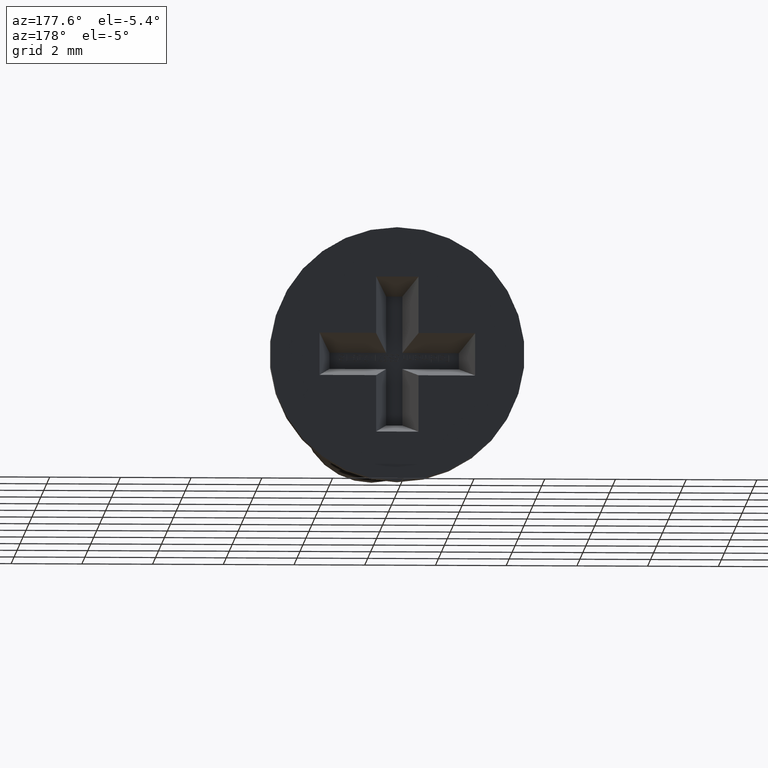
[diagram: clean part render]
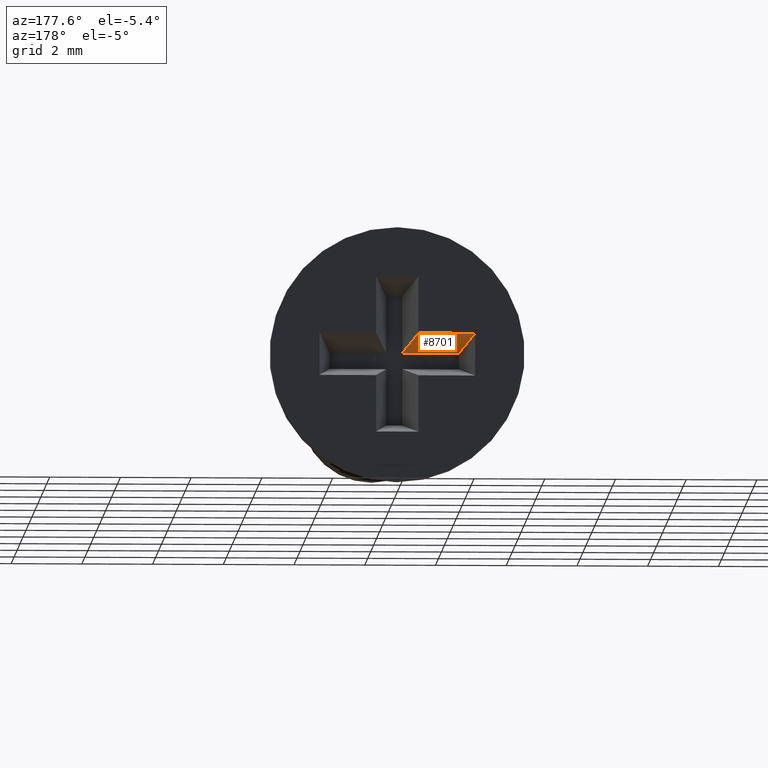
[diagram: same view with one face highlighted and labeled with its STEP entity id]
A machine part, auxiliary view. The second image highlights one B-rep face of the part: STEP entity #8701.
In plain terms, the highlighted planar face has unit normal (0, -0.1736, 0.9848).
Its self-contained STEP definition (entity closure, byte-faithful):
#695 = CARTESIAN_POINT ( 'NONE',  ( -0.2297133405122229500, 15.89999999999999700, 0.2297133405122232200 ) ) ;
#730 = DIRECTION ( 'NONE',  ( 0.0000000000000000000, -0.1736481776669303900, 0.9848077530122081300 ) ) ;
#901 = FACE_OUTER_BOUND ( 'NONE', #1112, .T. ) ;
#1036 = EDGE_CURVE ( 'NONE', #9289, #6752, #13403, .T. ) ;
#1112 = EDGE_LOOP ( 'NONE', ( #9910, #14562, #4274, #8963 ) ) ;
#1293 = VECTOR ( 'NONE', #7469, 1000.000000000000000 ) ;
#1938 = CARTESIAN_POINT ( 'NONE',  ( -2.164874728990915800, 17.80079468911703700, 0.5648747289909162900 ) ) ;
#1973 = LINE ( 'NONE', #4056, #1293 ) ;
#2974 = PLANE ( 'NONE',  #3104 ) ;
#3104 = AXIS2_PLACEMENT_3D ( 'NONE', #6347, #730, #7491 ) ;
#3898 = EDGE_CURVE ( 'NONE', #6752, #11652, #5191, .T. ) ;
#4056 = CARTESIAN_POINT ( 'NONE',  ( -2.199999999999999700, 18.00000000000000000, 0.5999999999999999800 ) ) ;
#4138 = VECTOR ( 'NONE', #8527, 1000.000000000000100 ) ;
#4274 = ORIENTED_EDGE ( 'NONE', *, *, #1036, .F. ) ;
#5191 = LINE ( 'NONE', #8482, #4138 ) ;
#6347 = CARTESIAN_POINT ( 'NONE',  ( -2.199999999999999700, 18.00000000000000000, 0.5999999999999999800 ) ) ;
#6375 = EDGE_CURVE ( 'NONE', #8191, #11652, #1973, .T. ) ;
#6752 = VERTEX_POINT ( 'NONE', #695 ) ;
#7469 = DIRECTION ( 'NONE',  ( 1.000000000000000000, 0.0000000000000000000, 0.0000000000000000000 ) ) ;
#7491 = DIRECTION ( 'NONE',  ( 0.0000000000000000000, -0.9848077530122080200, -0.1736481776669303600 ) ) ;
#7634 = DIRECTION ( 'NONE',  ( 1.000000000000000000, 0.0000000000000000000, 0.0000000000000000000 ) ) ;
#7907 = VECTOR ( 'NONE', #7634, 1000.000000000000000 ) ;
#8191 = VERTEX_POINT ( 'NONE', #13093 ) ;
#8482 = CARTESIAN_POINT ( 'NONE',  ( -0.5999999999999996400, 18.00000000000000000, 0.5999999999999999800 ) ) ;
#8527 = DIRECTION ( 'NONE',  ( -0.1710878697460355100, 0.9702875252478139200, 0.1710878697460355400 ) ) ;
#8701 = ADVANCED_FACE ( 'NONE', ( #901 ), #2974, .F. ) ;
#8963 = ORIENTED_EDGE ( 'NONE', *, *, #11271, .T. ) ;
#9289 = VERTEX_POINT ( 'NONE', #12468 ) ;
#9910 = ORIENTED_EDGE ( 'NONE', *, *, #6375, .T. ) ;
#10054 = CARTESIAN_POINT ( 'NONE',  ( -0.5999999999999996400, 18.00000000000000000, 0.5999999999999999800 ) ) ;
#10958 = CARTESIAN_POINT ( 'NONE',  ( -2.199999999999999700, 15.89999999999999700, 0.2297133405122232800 ) ) ;
#10960 = DIRECTION ( 'NONE',  ( -0.1710878697460355400, 0.9702875252478139200, 0.1710878697460355400 ) ) ;
#11271 = EDGE_CURVE ( 'NONE', #9289, #8191, #13192, .T. ) ;
#11652 = VERTEX_POINT ( 'NONE', #10054 ) ;
#12468 = CARTESIAN_POINT ( 'NONE',  ( -1.829713340512223000, 15.89999999999999700, 0.2297133405122232200 ) ) ;
#13093 = CARTESIAN_POINT ( 'NONE',  ( -2.199999999999999700, 18.00000000000000000, 0.5999999999999999800 ) ) ;
#13192 = LINE ( 'NONE', #1938, #13558 ) ;
#13403 = LINE ( 'NONE', #10958, #7907 ) ;
#13558 = VECTOR ( 'NONE', #10960, 1000.000000000000100 ) ;
#14562 = ORIENTED_EDGE ( 'NONE', *, *, #3898, .F. ) ;